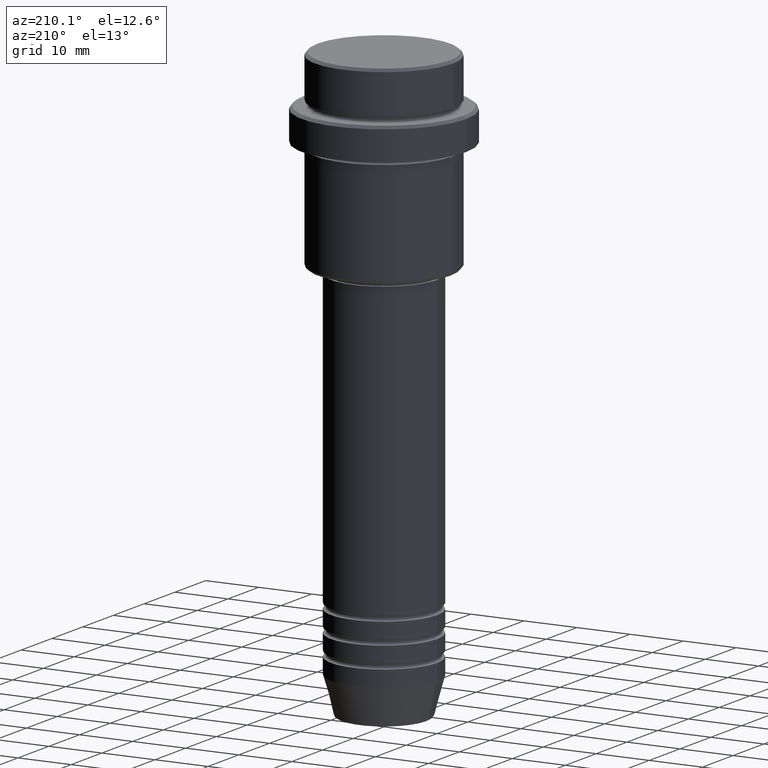
[diagram: clean part render]
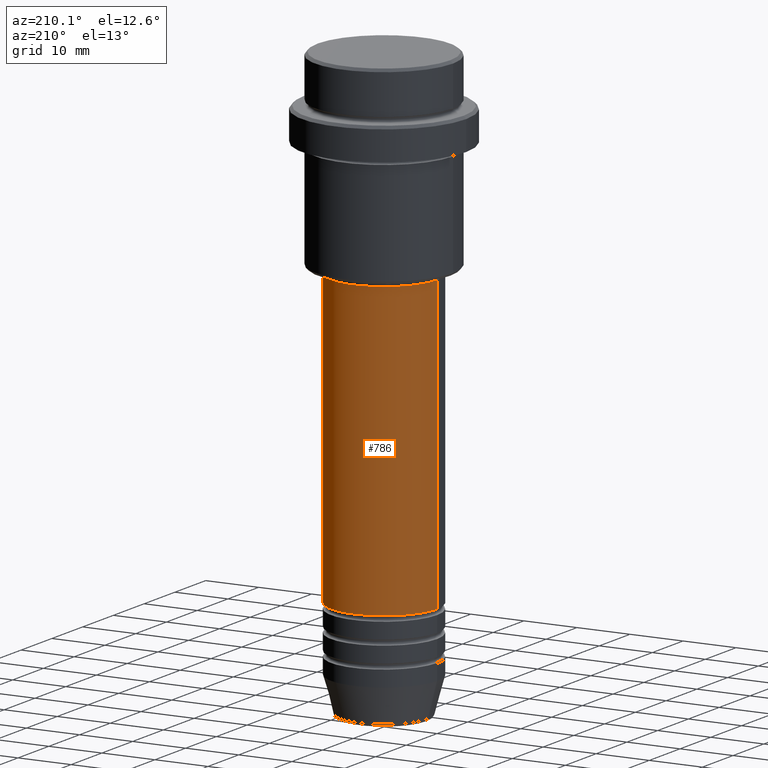
[diagram: same view with one face highlighted and labeled with its STEP entity id]
A machine part, auxiliary view. The second image highlights one B-rep face of the part: STEP entity #786.
In plain terms, the highlighted cylindrical surface (partial cylindrical patch) has radius 10 mm, axis along (-0, -0, 1).
Its self-contained STEP definition (entity closure, byte-faithful):
#22 = CARTESIAN_POINT ( 'NONE',  ( -10.00000000000000178, 1.224646799147353454E-15, 0.000000000000000000 ) ) ;
#102 = LINE ( 'NONE', #22, #747 ) ;
#125 = ORIENTED_EDGE ( 'NONE', *, *, #910, .T. ) ;
#138 = VERTEX_POINT ( 'NONE', #404 ) ;
#160 = VERTEX_POINT ( 'NONE', #1047 ) ;
#201 = DIRECTION ( 'NONE',  ( -0.000000000000000000, -0.000000000000000000, 1.000000000000000000 ) ) ;
#211 = CARTESIAN_POINT ( 'NONE',  ( 0.000000000000000000, 0.000000000000000000, -91.99999999999988631 ) ) ;
#218 = CARTESIAN_POINT ( 'NONE',  ( 10.00000000000000178, 0.000000000000000000, 0.000000000000000000 ) ) ;
#244 = CARTESIAN_POINT ( 'NONE',  ( -10.00000000000000000, 1.224646799147353256E-15, -91.99999999999988631 ) ) ;
#269 = EDGE_LOOP ( 'NONE', ( #1167, #125, #470, #521 ) ) ;
#298 = CIRCLE ( 'NONE', #947, 10.00000000000000178 ) ;
#334 = LINE ( 'NONE', #218, #1257 ) ;
#351 = EDGE_CURVE ( 'NONE', #707, #407, #1406, .T. ) ;
#388 = DIRECTION ( 'NONE',  ( 1.000000000000000000, 0.000000000000000000, 0.000000000000000000 ) ) ;
#404 = CARTESIAN_POINT ( 'NONE',  ( -10.00000000000000178, 1.224646799147353454E-15, -37.00000000000002132 ) ) ;
#407 = VERTEX_POINT ( 'NONE', #244 ) ;
#420 = CYLINDRICAL_SURFACE ( 'NONE', #1255, 10.00000000000000178 ) ;
#429 = DIRECTION ( 'NONE',  ( 1.000000000000000000, 0.000000000000000000, 0.000000000000000000 ) ) ;
#454 = DIRECTION ( 'NONE',  ( -0.000000000000000000, -0.000000000000000000, 1.000000000000000000 ) ) ;
#470 = ORIENTED_EDGE ( 'NONE', *, *, #709, .F. ) ;
#518 = CARTESIAN_POINT ( 'NONE',  ( 0.000000000000000000, 0.000000000000000000, 0.000000000000000000 ) ) ;
#521 = ORIENTED_EDGE ( 'NONE', *, *, #959, .F. ) ;
#663 = DIRECTION ( 'NONE',  ( -0.000000000000000000, -0.000000000000000000, 1.000000000000000000 ) ) ;
#707 = VERTEX_POINT ( 'NONE', #1361 ) ;
#709 = EDGE_CURVE ( 'NONE', #160, #138, #298, .T. ) ;
#747 = VECTOR ( 'NONE', #454, 1000.000000000000000 ) ;
#786 = ADVANCED_FACE ( 'NONE', ( #1394 ), #420, .T. ) ;
#857 = DIRECTION ( 'NONE',  ( -0.000000000000000000, -0.000000000000000000, 1.000000000000000000 ) ) ;
#907 = DIRECTION ( 'NONE',  ( -0.000000000000000000, -0.000000000000000000, 1.000000000000000000 ) ) ;
#910 = EDGE_CURVE ( 'NONE', #407, #138, #102, .T. ) ;
#947 = AXIS2_PLACEMENT_3D ( 'NONE', #1004, #907, #388 ) ;
#959 = EDGE_CURVE ( 'NONE', #707, #160, #334, .T. ) ;
#1004 = CARTESIAN_POINT ( 'NONE',  ( 0.000000000000000000, 0.000000000000000000, -37.00000000000002132 ) ) ;
#1047 = CARTESIAN_POINT ( 'NONE',  ( 10.00000000000000178, 0.000000000000000000, -37.00000000000002132 ) ) ;
#1061 = DIRECTION ( 'NONE',  ( 1.000000000000000000, 0.000000000000000000, 0.000000000000000000 ) ) ;
#1076 = AXIS2_PLACEMENT_3D ( 'NONE', #211, #201, #1061 ) ;
#1167 = ORIENTED_EDGE ( 'NONE', *, *, #351, .T. ) ;
#1255 = AXIS2_PLACEMENT_3D ( 'NONE', #518, #857, #429 ) ;
#1257 = VECTOR ( 'NONE', #663, 1000.000000000000000 ) ;
#1361 = CARTESIAN_POINT ( 'NONE',  ( 10.00000000000000000, 0.000000000000000000, -91.99999999999988631 ) ) ;
#1394 = FACE_OUTER_BOUND ( 'NONE', #269, .T. ) ;
#1406 = CIRCLE ( 'NONE', #1076, 10.00000000000000000 ) ;